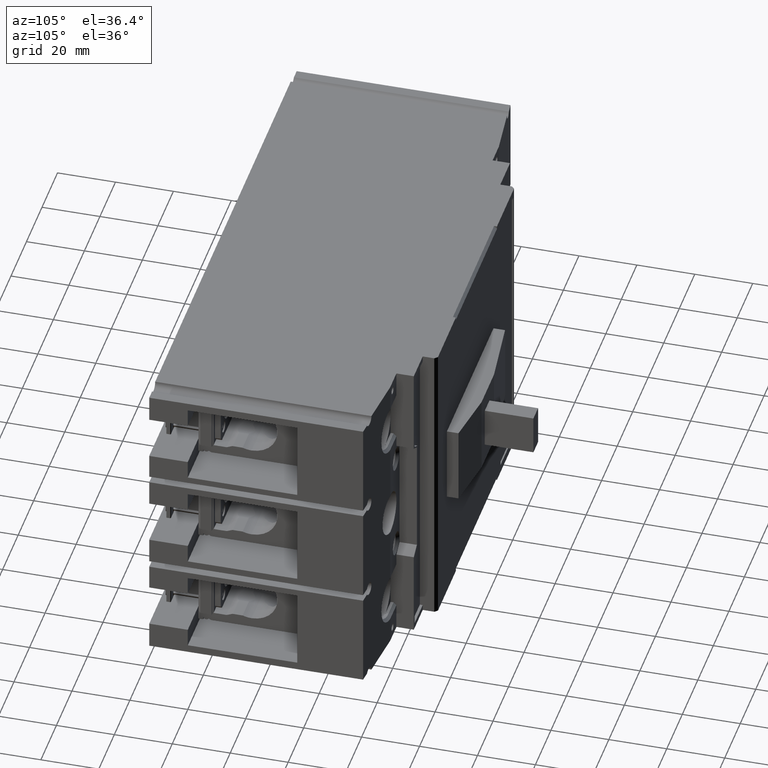
[diagram: clean part render]
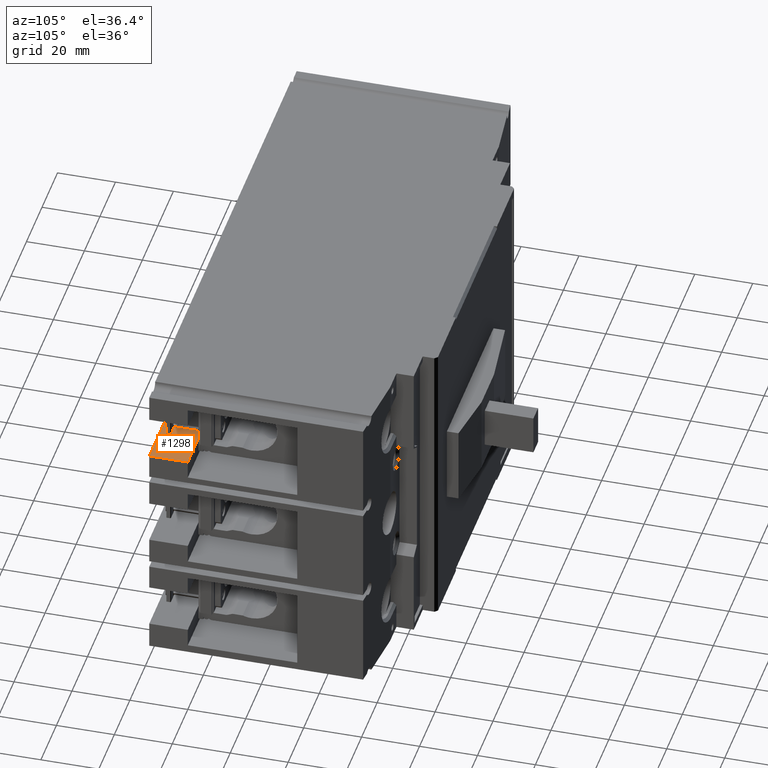
[diagram: same view with one face highlighted and labeled with its STEP entity id]
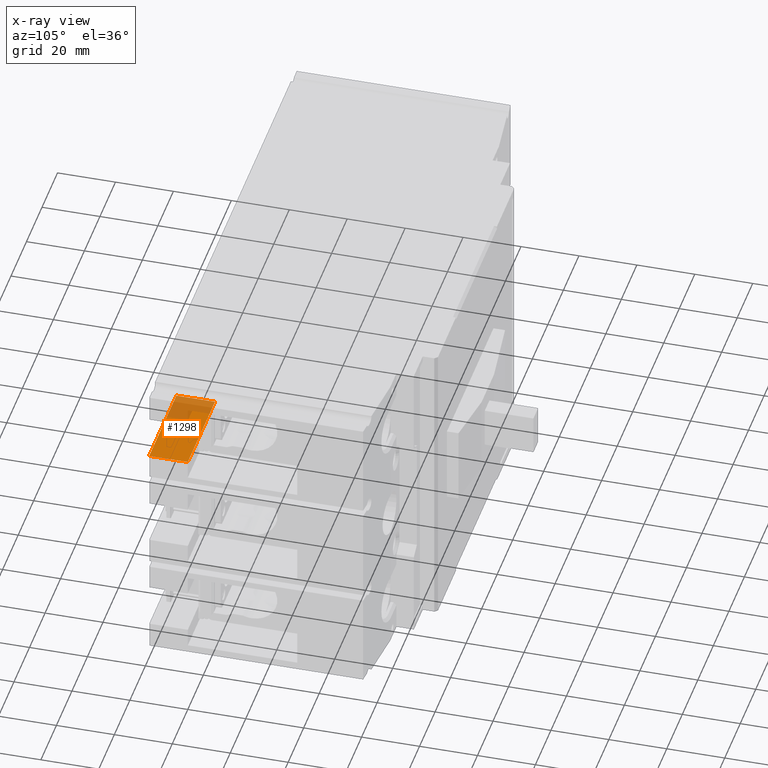
[diagram: x-ray of the same camera — body ghosted, the highlighted face saturated]
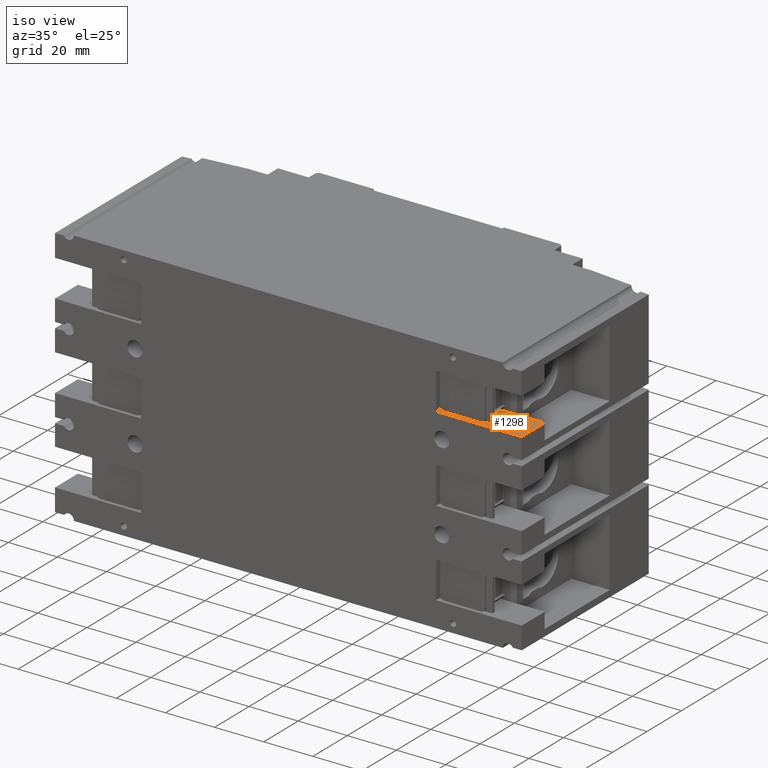
[diagram: same view with one face highlighted and labeled with its STEP entity id]
A machine part, auxiliary view. The second image highlights one B-rep face of the part: STEP entity #1298.
The next image is the same camera in x-ray: the body ghosted, the highlighted face saturated — about 28% of this face is hidden behind the body in this view.
A second angle (iso view) of the same face is appended — the face is thin or edge-on in the first view.
In plain terms, the highlighted planar face has unit normal (0, 0, 1).
Its self-contained STEP definition (entity closure, byte-faithful):
#47 = DIRECTION ( 'NONE',  ( -1.000000000000000000, -0.000000000000000000, 0.000000000000000000 ) ) ;
#449 = DIRECTION ( 'NONE',  ( 0.000000000000000000, 0.000000000000000000, 1.000000000000000000 ) ) ;
#1298 = ADVANCED_FACE ( 'NONE', ( #47040 ), #46638, .T. ) ;
#5460 = CARTESIAN_POINT ( 'NONE',  ( 3.740157480314960647, 0.5244094488188976166, 1.072834645669291431 ) ) ;
#5637 = CARTESIAN_POINT ( 'NONE',  ( 3.740157480314961536, 0.5244094488188976166, 1.072834645669291431 ) ) ;
#6822 = VERTEX_POINT ( 'NONE', #60541 ) ;
#10024 = VECTOR ( 'NONE', #56857, 39.37007874015748143 ) ;
#14639 = LINE ( 'NONE', #72464, #71136 ) ;
#16739 = DIRECTION ( 'NONE',  ( 0.000000000000000000, -1.000000000000000000, -0.000000000000000000 ) ) ;
#17105 = EDGE_CURVE ( 'NONE', #6822, #57671, #14639, .T. ) ;
#19339 = ORIENTED_EDGE ( 'NONE', *, *, #17105, .T. ) ;
#19636 = DIRECTION ( 'NONE',  ( 1.000000000000000000, 0.000000000000000000, 0.000000000000000000 ) ) ;
#20384 = CARTESIAN_POINT ( 'NONE',  ( 3.740157480314961536, 0.000000000000000000, 1.072834645669291431 ) ) ;
#22514 = EDGE_CURVE ( 'NONE', #48197, #49873, #65144, .T. ) ;
#26455 = EDGE_LOOP ( 'NONE', ( #37790, #19339, #55213, #41797 ) ) ;
#29316 = CARTESIAN_POINT ( 'NONE',  ( 3.740157480314960647, 0.5244094488188976166, 1.072834645669291431 ) ) ;
#37790 = ORIENTED_EDGE ( 'NONE', *, *, #72404, .T. ) ;
#41011 = CARTESIAN_POINT ( 'NONE',  ( 2.362204724409448620, 0.5244094488188976166, 1.072834645669291431 ) ) ;
#41797 = ORIENTED_EDGE ( 'NONE', *, *, #22514, .T. ) ;
#44492 = EDGE_CURVE ( 'NONE', #48197, #57671, #51803, .T. ) ;
#44512 = CARTESIAN_POINT ( 'NONE',  ( 3.740157480314960647, 0.000000000000000000, 1.072834645669291431 ) ) ;
#46343 = AXIS2_PLACEMENT_3D ( 'NONE', #29316, #449, #70934 ) ;
#46638 = PLANE ( 'NONE',  #46343 ) ;
#47040 = FACE_OUTER_BOUND ( 'NONE', #26455, .T. ) ;
#48197 = VERTEX_POINT ( 'NONE', #5637 ) ;
#49873 = VERTEX_POINT ( 'NONE', #54313 ) ;
#51803 = LINE ( 'NONE', #44512, #10024 ) ;
#54313 = CARTESIAN_POINT ( 'NONE',  ( 2.362204724409448620, 0.5244094488188976166, 1.072834645669291209 ) ) ;
#55213 = ORIENTED_EDGE ( 'NONE', *, *, #44492, .F. ) ;
#56857 = DIRECTION ( 'NONE',  ( 0.000000000000000000, -1.000000000000000000, -0.000000000000000000 ) ) ;
#57671 = VERTEX_POINT ( 'NONE', #20384 ) ;
#60541 = CARTESIAN_POINT ( 'NONE',  ( 2.362204724409448620, 0.000000000000000000, 1.072834645669291431 ) ) ;
#61710 = VECTOR ( 'NONE', #16739, 39.37007874015748143 ) ;
#65144 = LINE ( 'NONE', #5460, #75447 ) ;
#69922 = LINE ( 'NONE', #41011, #61710 ) ;
#70934 = DIRECTION ( 'NONE',  ( 1.000000000000000000, 0.000000000000000000, -0.000000000000000000 ) ) ;
#71136 = VECTOR ( 'NONE', #19636, 39.37007874015748143 ) ;
#72404 = EDGE_CURVE ( 'NONE', #49873, #6822, #69922, .T. ) ;
#72464 = CARTESIAN_POINT ( 'NONE',  ( 0.000000000000000000, 0.000000000000000000, 1.072834645669291431 ) ) ;
#75447 = VECTOR ( 'NONE', #47, 39.37007874015748143 ) ;